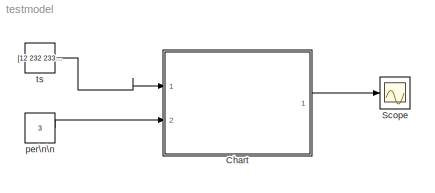
MODEL testmodel
KIND model
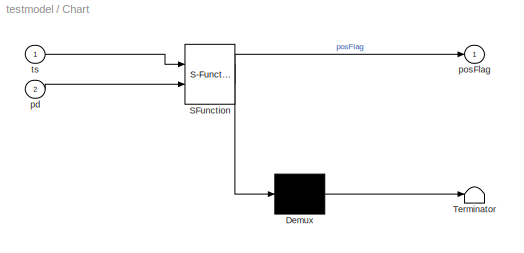
BLOCK [SubSystem] Chart
  ErrorFcn = Stateflow.Translate.translate
  PermitHierarchicalResolution = ExplicitOnly
  Ports = [2, 1]
  RequestExecContextInheritance = off
  SFBlockType = Chart
  SID = 3
  TreatAsAtomicUnit = on
BLOCK [Demux] Chart/ Demux 
  Outputs = 1
  Ports = [1, 1]
  SID = 3::92
BLOCK [S-Function] Chart/ SFunction 
  EnableBusSupport = off
  FunctionName = sf_sfun
  PortCounts = [2 2]
  Ports = [2, 2]
  SFcnIsStateOwnerBlock = off
  SFunctionDeploymentMode = off
  SID = 3::91
  Tag = Stateflow S-Function 3
BLOCK [Terminator] Chart/ Terminator 
  SID = 3::93
BLOCK [Inport] Chart/pd
  IconDisplay = Port number
  Port = 2
  SID = 3::90
BLOCK [Outport] Chart/posFlag
  IconDisplay = Port number
  SID = 3::85
BLOCK [Inport] Chart/ts
  IconDisplay = Port number
  SID = 3::89
BLOCK [Scope] Scope
  Floating = off
  NumInputPorts = 1
  Ports = [1]
  SID = 4
  ScopeSpecificationString = C++SS(StrPVP('Location','[1161, 239, 1708, 665]'),StrPVP('Open','on'),MxPVP('AxesTitles',54,'struct(''axes1'',''%<SignalLabel>'')'),MxPVP('ScopeGraphics',57,'struct(''FigureColor'',''[0.5 0.5 0.5]'',''AxesColor'',''[0 0 0]'',''AxesTickColor'',''[1 1 1]'',''LineColors'',''[1 1 0;1 0 1;0 1 1;1 0 0;0 1 0;0 0 1]'',''LineStyles'',''-|-|-|-|-|-'',''LineWidths'',''[0.5 0.5 0.5 0.5 0.5 0.5]'',''MarkerStyl...<+220ch>
BLOCK [Constant] per\n\n
  SID = 2
  Value = 3
BLOCK [Constant] ts
  SID = 1
  Value = [12 232 2336 54 653 35]
  VectorParams1D = off
LINE Chart/ Demux :1 -> Chart/ Terminator :1
LINE Chart/ SFunction :1 -> Chart/ Demux :1
LINE Chart/ SFunction :2 -> Chart/posFlag:1
LINE Chart/pd:1 -> Chart/ SFunction :2
LINE Chart/ts:1 -> Chart/ SFunction :1
LINE Chart:1 -> Scope:1
LINE per\n\n:1 -> Chart:2
LINE ts:1 -> Chart:1
CHART Chart states=3 transitions=5
  STATE_LABEL 'avgNum=testMovAvg(x,ped)'
  STATE_LABEL 'buy\\nen: posFlag=1\\n'
  STATE_LABEL 'sell\\nen: posFlag=-1\\n'
